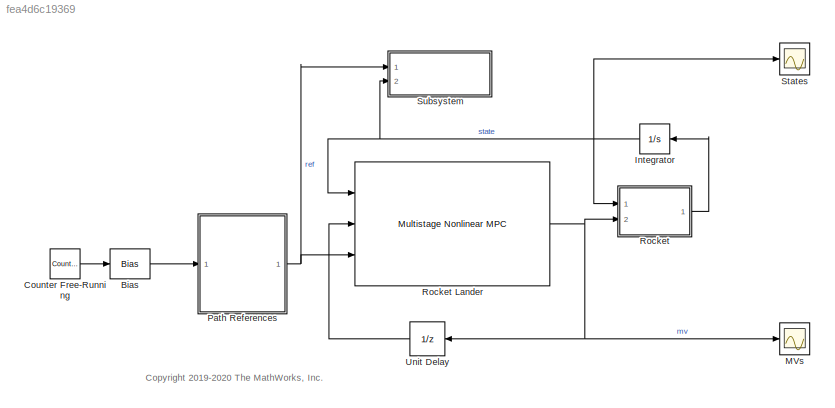
MODEL slx_fea4d6c19369
KIND model
CONFIG AbsTol = auto
CONFIG EnableMultiTasking = off
CONFIG FixedStep = Ts
CONFIG MaxStep = auto
CONFIG MinStep = auto
CONFIG RelTol = 1e-3
CONFIG SampleTimeConstraint = Unconstrained
CONFIG SolverName = FixedStepAuto
CONFIG StartTime = 0.0
CONFIG StopTime = 15
BLOCK [Bias] Bias
  Bias = 1
  SaturateOnIntegerOverflow = off
BLOCK [Reference] Counter Free-Running  REF=simulink/Sources/Counter
Free-Running
  Ports = [0, 1]
  SourceBlock = simulink/Sources/Counter\nFree-Running
  SourceProductBaseCode = SL
  SourceType = Counter Free-Running
BLOCK [Integrator] Integrator
  InitialCondition = x0
  Ports = [1, 1]
BLOCK [Scope] MVs
  Floating = off
  NumInputPorts = 1
  Ports = [1]
  ScopeSpecificationString = Simulink.scopes.TimeScopeBlockCfg('CurrentConfiguration', extmgr.ConfigurationSet(extmgr.Configuration('Core','General UI',true),extmgr.Configuration('Core','Source UI',true),extmgr.Configuration('Sources','WiredSimulink',true,'DataLoggingVariableName','ScopeData1'),extmgr.Configuration('Visuals','Time Domain',true,'SerializedDisplays',{struct('MinYLimReal','-1.00000','MaxYLimReal','9.00000','YLab...<+1424ch>
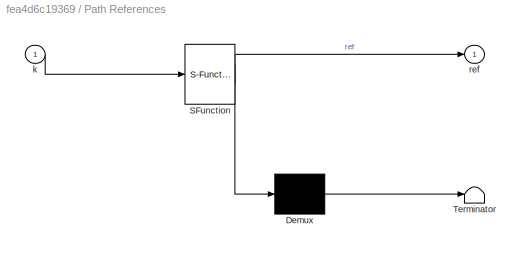
BLOCK [SubSystem] Path References
  ErrorFcn = Stateflow.Translate.translate
  PermitHierarchicalResolution = ExplicitOnly
  Ports = [1, 1]
  RequestExecContextInheritance = off
  SFBlockType = MATLAB Function
  TreatAsAtomicUnit = on
BLOCK [Demux] Path References/ Demux 
  Outputs = 1
  Ports = [1, 1]
BLOCK [S-Function] Path References/ SFunction 
  EnableBusSupport = on
  FunctionName = sf_sfun
  Parameters = pLander,references
  PortCounts = [1 2]
  Ports = [1, 2]
  SFcnIsStateOwnerBlock = off
  SFunctionDeploymentMode = off
  Tag = Stateflow S-Function 1
BLOCK [Terminator] Path References/ Terminator 
BLOCK [Inport] Path References/k
BLOCK [Outport] Path References/ref
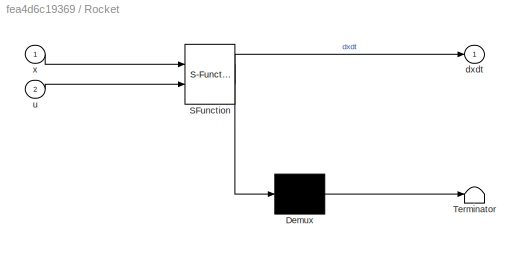
BLOCK [SubSystem] Rocket
  ErrorFcn = Stateflow.Translate.translate
  PermitHierarchicalResolution = ExplicitOnly
  Ports = [2, 1]
  RequestExecContextInheritance = off
  SFBlockType = MATLAB Function
  TreatAsAtomicUnit = on
BLOCK [Reference] Rocket Lander  REF=mpclib/Multistage Nonlinear MPC  (lib defined in mdl_ae329e0e0455)
  Ports = [3, 1]
  SCDEnableBlockLinearizationSpecification = on
  SourceBlock = mpclib/Multistage Nonlinear MPC
  SourceProductBaseCode = MP
  SourceType = NonlinearMPCMultistage
BLOCK [Demux] Rocket/ Demux 
  Outputs = 1
  Ports = [1, 1]
BLOCK [S-Function] Rocket/ SFunction 
  EnableBusSupport = on
  FunctionName = sf_sfun
  PortCounts = [2 2]
  Ports = [2, 2]
  SFcnIsStateOwnerBlock = off
  SFunctionDeploymentMode = off
  Tag = Stateflow S-Function 2
BLOCK [Terminator] Rocket/ Terminator 
BLOCK [Outport] Rocket/dxdt
BLOCK [Inport] Rocket/u
  Port = 2
BLOCK [Inport] Rocket/x
BLOCK [Scope] States
  Floating = off
  NumInputPorts = 1
  Ports = [1]
  ScopeSpecificationString = Simulink.scopes.TimeScopeBlockCfg('CurrentConfiguration', extmgr.ConfigurationSet(extmgr.Configuration('Core','General UI',true),extmgr.Configuration('Core','Source UI',true),extmgr.Configuration('Sources','WiredSimulink',true),extmgr.Configuration('Visuals','Time Domain',true,'SerializedDisplays',{struct('MinYLimReal','-36.25276','MaxYLimReal','101.36087','YLabelReal','','MinYLimMag','0.00000','M...<+1397ch>
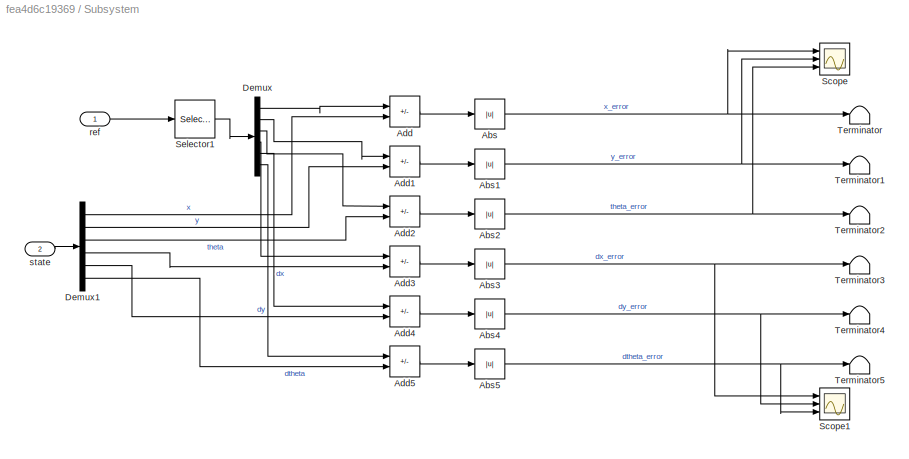
BLOCK [SubSystem] Subsystem
  Ports = [2]
  RequestExecContextInheritance = off
BLOCK [Abs] Subsystem/Abs
  SaturateOnIntegerOverflow = off
BLOCK [Abs] Subsystem/Abs1
  SaturateOnIntegerOverflow = off
BLOCK [Abs] Subsystem/Abs2
  SaturateOnIntegerOverflow = off
BLOCK [Abs] Subsystem/Abs3
  SaturateOnIntegerOverflow = off
BLOCK [Abs] Subsystem/Abs4
  SaturateOnIntegerOverflow = off
BLOCK [Abs] Subsystem/Abs5
  SaturateOnIntegerOverflow = off
BLOCK [Sum] Subsystem/Add
  IconShape = rectangular
  Inputs = +-
  Ports = [2, 1]
BLOCK [Sum] Subsystem/Add1
  IconShape = rectangular
  Inputs = +-
  Ports = [2, 1]
BLOCK [Sum] Subsystem/Add2
  IconShape = rectangular
  Inputs = +-
  Ports = [2, 1]
BLOCK [Sum] Subsystem/Add3
  IconShape = rectangular
  Inputs = +-
  Ports = [2, 1]
BLOCK [Sum] Subsystem/Add4
  IconShape = rectangular
  Inputs = +-
  Ports = [2, 1]
BLOCK [Sum] Subsystem/Add5
  IconShape = rectangular
  Inputs = +-
  Ports = [2, 1]
BLOCK [Demux] Subsystem/Demux
  Outputs = 6
  Ports = [1, 6]
BLOCK [Demux] Subsystem/Demux1
  Outputs = 6
  Ports = [1, 6]
BLOCK [Scope] Subsystem/Scope
  Floating = off
  NumInputPorts = 3
  Ports = [3]
  ScopeSpecificationString = Simulink.scopes.TimeScopeBlockCfg('CurrentConfiguration', extmgr.ConfigurationSet(extmgr.Configuration('Core','General UI',true),extmgr.Configuration('Core','Source UI',true),extmgr.Configuration('Sources','WiredSimulink',true,'DataLoggingVariableName','ScopeData1'),extmgr.Configuration('Visuals','Time Domain',true,'SerializedDisplays',{struct('MinYLimReal','-0.25673','MaxYLimReal','2.31054','YLab...<+2753ch>
BLOCK [Scope] Subsystem/Scope1
  Floating = off
  NumInputPorts = 3
  Ports = [3]
  ScopeSpecificationString = Simulink.scopes.TimeScopeBlockCfg('CurrentConfiguration', extmgr.ConfigurationSet(extmgr.Configuration('Core','General UI',true),extmgr.Configuration('Core','Source UI',true),extmgr.Configuration('Sources','WiredSimulink',true,'DataLoggingVariableName','ScopeData2'),extmgr.Configuration('Visuals','Time Domain',true,'SerializedDisplays',{struct('MinYLimReal','-0.13187','MaxYLimReal','1.18679','YLab...<+2727ch>
BLOCK [Selector] Subsystem/Selector1
  IndexOptions = Index vector (dialog)
  Indices = [1 2 3 4 5 6]
  InputPortWidth = 66
  OutputSizes = 1
  Ports = [1, 1]
BLOCK [Terminator] Subsystem/Terminator
BLOCK [Terminator] Subsystem/Terminator1
BLOCK [Terminator] Subsystem/Terminator2
BLOCK [Terminator] Subsystem/Terminator3
BLOCK [Terminator] Subsystem/Terminator4
BLOCK [Terminator] Subsystem/Terminator5
BLOCK [Inport] Subsystem/ref
BLOCK [Inport] Subsystem/state
  Port = 2
BLOCK [UnitDelay] Unit Delay
  HasFrameUpgradeWarning = on
  InitialCondition = u0
  SampleTime = -1
ANNOTATION (root): <copyright redacted>
LINE Bias:1 -> Path References:1
LINE Counter Free-Running:1 -> Bias:1
NET Integrator:1 -> Rocket Lander:1, Rocket:1, States:1, Subsystem:2
NET Path References:1 -> Rocket Lander:3, Subsystem:1
NET Rocket Lander:1 -> MVs:1, Rocket:2, Unit Delay:1
LINE Rocket:1 -> Integrator:1
NET Subsystem/Abs1:1 -> Subsystem/Scope:2, Subsystem/Terminator1:1
NET Subsystem/Abs2:1 -> Subsystem/Scope:3, Subsystem/Terminator2:1
NET Subsystem/Abs3:1 -> Subsystem/Scope1:1, Subsystem/Terminator3:1
NET Subsystem/Abs4:1 -> Subsystem/Scope1:2, Subsystem/Terminator4:1
NET Subsystem/Abs5:1 -> Subsystem/Scope1:3, Subsystem/Terminator5:1
NET Subsystem/Abs:1 -> Subsystem/Scope:1, Subsystem/Terminator:1
LINE Subsystem/Add1:1 -> Subsystem/Abs1:1
LINE Subsystem/Add2:1 -> Subsystem/Abs2:1
LINE Subsystem/Add3:1 -> Subsystem/Abs3:1
LINE Subsystem/Add4:1 -> Subsystem/Abs4:1
LINE Subsystem/Add5:1 -> Subsystem/Abs5:1
LINE Subsystem/Add:1 -> Subsystem/Abs:1
LINE Subsystem/Demux1:1 -> Subsystem/Add:2
LINE Subsystem/Demux1:2 -> Subsystem/Add1:2
LINE Subsystem/Demux1:3 -> Subsystem/Add2:2
LINE Subsystem/Demux1:4 -> Subsystem/Add3:2
LINE Subsystem/Demux1:5 -> Subsystem/Add4:2
LINE Subsystem/Demux1:6 -> Subsystem/Add5:2
LINE Subsystem/Demux:1 -> Subsystem/Add:1
LINE Subsystem/Demux:2 -> Subsystem/Add1:1
LINE Subsystem/Demux:3 -> Subsystem/Add2:1
LINE Subsystem/Demux:4 -> Subsystem/Add3:1
LINE Subsystem/Demux:5 -> Subsystem/Add4:1
LINE Subsystem/Demux:6 -> Subsystem/Add5:1
LINE Subsystem/Selector1:1 -> Subsystem/Demux:1
LINE Subsystem/ref:1 -> Subsystem/Selector1:1
LINE Subsystem/state:1 -> Subsystem/Demux1:1
LINE Unit Delay:1 -> Rocket Lander:2
note: NET lines group one-source signal fan-out (src -> all destinations, sorted); 1:1 wires keep LINE
CHART Rocket states=1 transitions=1
  STATE_LABEL 'eML_blk_kernel()'
  STATE_LABEL 'SCRIPT:\nfunction dxdt = fcn(x,u)\ndxdt = RocketStateFcn(x,u);\n\n'
CHART Path References states=1 transitions=1
  STATE_LABEL 'eML_blk_kernel()'
  STATE_LABEL 'SCRIPT:\nfunction ref = fcn(k,references,pLander)\nref = RocketLanderReferenceSignal(k,references,pLander);\n'
CHART  states=0 transitions=0
CHART  states=0 transitions=0
